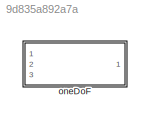
MODEL slx_9d835a892a7a
KIND library
CONFIG AbsTol = auto
CONFIG EnableMultiTasking = off
CONFIG FixedStep = auto
CONFIG MaxStep = auto
CONFIG MinStep = auto
CONFIG RelTol = 1e-3
CONFIG SampleTimeConstraint = Unconstrained
CONFIG Solver = VariableStepAuto
CONFIG SolverName = VariableStepAuto
CONFIG StartTime = 0.0
CONFIG StopTime = 10.0
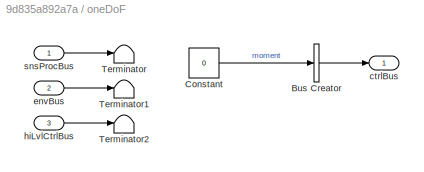
BLOCK [SubSystem] oneDoF
  InitFcn = initializeBussesFromBlock(gcb)
  LoadFcn = initializeBussesFromBlock(gcb)
  Ports = [3, 1]
  RequestExecContextInheritance = off
  StartFcn = initializeBussesFromBlock(gcb)
BLOCK [BusCreator] oneDoF/Bus Creator
  DisplayOption = bar
  InheritFromInputs = on
  Inputs = 1
  OutDataTypeStr = Bus: gndStnCtrlBus
  Ports = [1, 1]
BLOCK [Constant] oneDoF/Constant
  Value = 0
BLOCK [Terminator] oneDoF/Terminator
BLOCK [Terminator] oneDoF/Terminator1
BLOCK [Terminator] oneDoF/Terminator2
BLOCK [Outport] oneDoF/ctrlBus
  IconDisplay = Port number
  OutDataTypeStr = Bus: gndStnCtrlBus
BLOCK [Inport] oneDoF/envBus
  IconDisplay = Port number
  OutDataTypeStr = Bus: envBus
  Port = 2
BLOCK [Inport] oneDoF/hiLvlCtrlBus
  IconDisplay = Port number
  OutDataTypeStr = Bus: hiLvlCtrlBus
  Port = 3
BLOCK [Inport] oneDoF/snsProcBus
  IconDisplay = Port number
  OutDataTypeStr = Bus: sensorsProcessingBus
LINE oneDoF/Bus Creator:1 -> oneDoF/ctrlBus:1
LINE oneDoF/Constant:1 -> oneDoF/Bus Creator:1
LINE oneDoF/envBus:1 -> oneDoF/Terminator1:1
LINE oneDoF/hiLvlCtrlBus:1 -> oneDoF/Terminator2:1
LINE oneDoF/snsProcBus:1 -> oneDoF/Terminator:1
